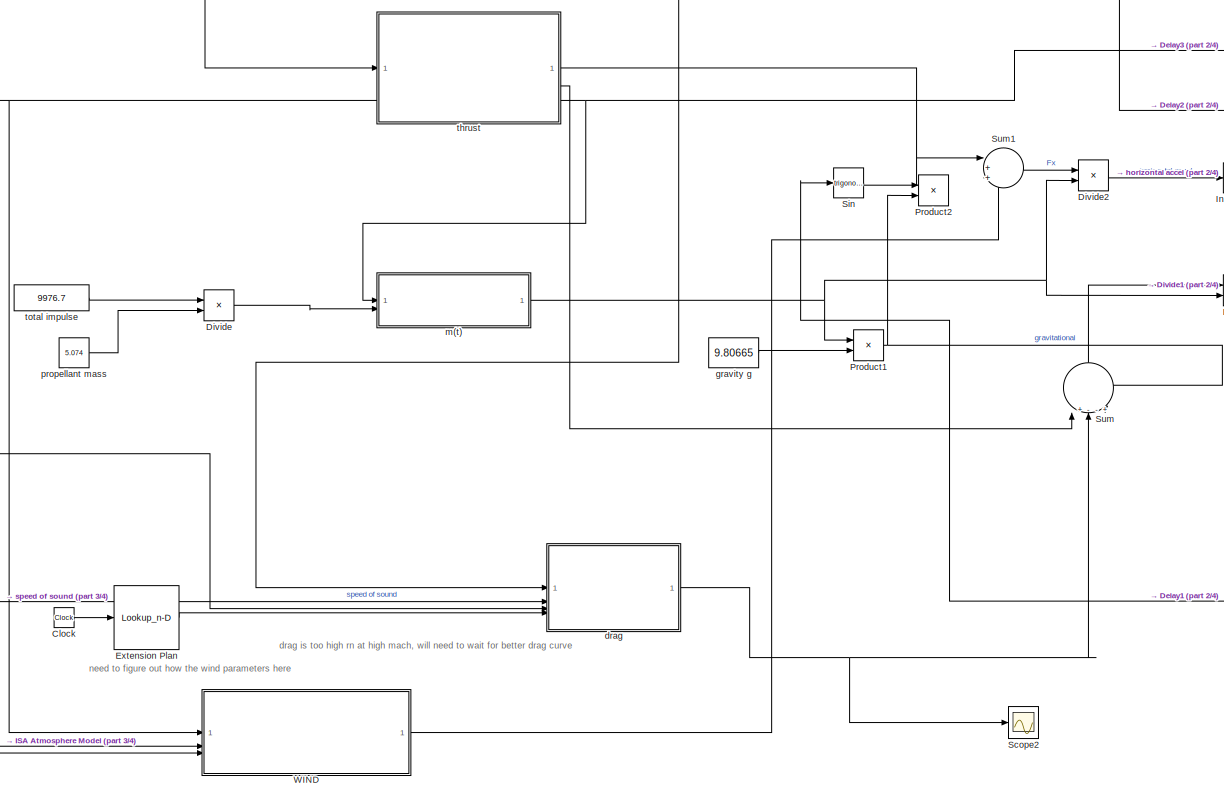
[diagram: root canvas - part 1/4, left side, full height]
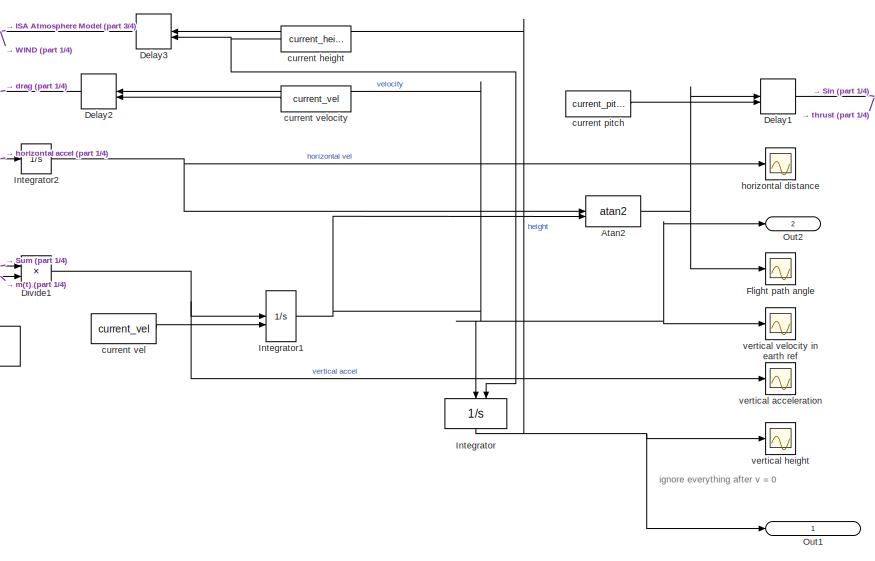
[diagram: root canvas - part 2/4, middle left region]
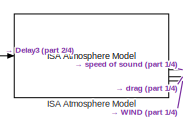
[diagram: root canvas - part 3/4, middle left region]
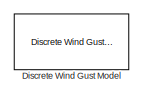
[diagram: root canvas - part 4/4, middle right region]
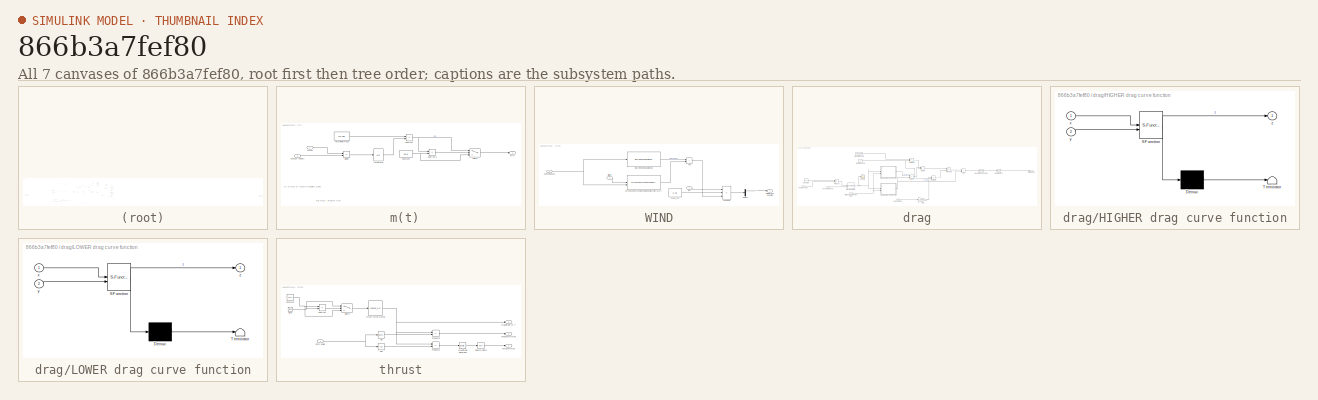
[diagram: thumbnail index - all 7 canvases of the model, root first then tree order]
MODEL slx_866b3a7fef80
KIND model
CONFIG AbsTol = auto
CONFIG EnableMultiTasking = off
CONFIG FixedStep = auto
CONFIG MaxStep = auto
CONFIG MinStep = auto
CONFIG RelTol = 1e-3
CONFIG SampleTimeConstraint = Unconstrained
CONFIG SolverName = ode15s
CONFIG StartTime = 0
CONFIG StopTime = 200.0
BLOCK [SubSystem]  m(t)
BLOCK [Constant]  m(t)/Constant
  Value = 16.8
BLOCK [Product]  m(t)/Divide
  Inputs = */
BLOCK [Integrator]  m(t)/Integrator
BLOCK [Sum]  m(t)/Subtract
  IconShape = rectangular
  Inputs = +-
BLOCK [Sum]  m(t)/Subtract1
  IconShape = rectangular
  Inputs = +-
BLOCK [Switch]  m(t)/Switch
  Criteria = u2 > Threshold
  InputSameDT = off
  SaturateOnIntegerOverflow = off
BLOCK [Constant]  m(t)/Total initial mass
  Value = 22.145
BLOCK [Inport]  m(t)/exhaust velocity
  Port = 2
BLOCK [Outport]  m(t)/m(t)
BLOCK [Inport]  m(t)/thrust
BLOCK [Trigonometry] Atan2
  Operator = atan2
BLOCK [Clock] Clock
BLOCK [Delay] Delay1
  DelayLength = 1
  InitialConditionSource = Input port
  InputPortMap = u0,p4
BLOCK [Delay] Delay2
  DelayLength = 1
  InitialConditionSource = Input port
  InputPortMap = u0,p4
BLOCK [Delay] Delay3
  DelayLength = 1
  InitialConditionSource = Input port
  InputPortMap = u0,p4
BLOCK [Reference] Discrete Wind Gust Model  REF=aerolibwind2/Discrete Wind Gust Model
  SourceBlock = aerolibwind2/Discrete Wind Gust Model
  SourceType = Discrete Wind Gust Model
BLOCK [Product] Divide
  Inputs = */
BLOCK [Product] Divide1
  Inputs = */
BLOCK [Product] Divide2
  Inputs = */
BLOCK [Lookup_n-D] Extension Plan
  BreakpointsForDimension1 = [0 4.99 5 5.01 5.011 6]
  InputPortMap = u0
  InternalRulePriority = Speed
  NumberOfTableDimensions = 1
  RndMeth = Simplest
  Table = [0 0 extension_length 0.99*extension_length 0 0]
BLOCK [Scope] Flight path angle
  Floating = off
  NumInputPorts = 1
  ScopeSpecificationString = Simulink.scopes.TimeScopeBlockCfg('CurrentConfiguration', extmgr.ConfigurationSet(extmgr.Configuration('Core','General UI',true),extmgr.Configuration('Core','Source UI',true),extmgr.Configuration('Sources','WiredSimulink',true,'DataLoggingVariableName','ScopeData1'),extmgr.Configuration('Visuals','Time Domain',true,'SerializedDisplays',{struct('MinYLimReal','-0.05','MaxYLimReal','1.56955','YLabelR...<+1469ch>
BLOCK [Reference] ISA Atmosphere Model  REF=aerolibatmos2/ISA Atmosphere Model
  SourceBlock = aerolibatmos2/ISA Atmosphere Model
  SourceType = International Standard Atmosphere Model
BLOCK [Integrator] Integrator
  InitialConditionSource = external
  NameLocation = left
BLOCK [Integrator] Integrator1
  InitialConditionSource = external
BLOCK [Integrator] Integrator2
BLOCK [Outport] Out1
  IconDisplay = Signal name
  SignalName = height
BLOCK [Outport] Out2
  IconDisplay = Signal name
  Port = 2
  SignalName = velocity
BLOCK [Product] Product1
BLOCK [Product] Product2
BLOCK [Scope] Scope2
  Floating = off
  NumInputPorts = 1
  ScopeSpecificationString = Simulink.scopes.TimeScopeBlockCfg('CurrentConfiguration', extmgr.ConfigurationSet(extmgr.Configuration('Core','General UI',true),extmgr.Configuration('Core','Source UI',true),extmgr.Configuration('Sources','WiredSimulink',true,'DataLoggingVariableName','ScopeData6'),extmgr.Configuration('Visuals','Time Domain',true,'SerializedDisplays',{struct('MinYLimReal','-34.15702','MaxYLimReal','308.70219','Y...<+1399ch>
BLOCK [Trigonometry] Sin
BLOCK [Sum] Sum
  Inputs = |+--+-
  NameLocation = right
BLOCK [Sum] Sum1
  Inputs = |+++
BLOCK [SubSystem] WIND
BLOCK [Sum] WIND/Add
  IconShape = rectangular
BLOCK [Inport] WIND/Altitude
BLOCK [Demux] WIND/Demux
  Outputs = 3
BLOCK [Reference] WIND/Discrete Wind Gust Model1  REF=aerolibwind2/Discrete Wind Gust Model
  SourceBlock = aerolibwind2/Discrete Wind Gust Model
  SourceType = Discrete Wind Gust Model
BLOCK [Reference] WIND/Dryden Wind Turbulence Model (Discrete (+q +r))  REF=aerolibwind2/Dryden Wind Turbulence Model 
(Continuous (+q -r))
  LibrarySourceBlock = aerolibwind2/Dryden Wind Turbulence Model \n(Discrete (+q +r))
  SourceBlock = aerolibwind2/Dryden Wind Turbulence Model \n(Continuous (+q -r))
  SourceType = Wind Turbulence Model
BLOCK [Inport] WIND/In2
  Port = 2
BLOCK [Product] WIND/Product2
  Inputs = 3
BLOCK [Constant] WIND/area_ref
  Value = 0.15
BLOCK [Inport] WIND/speed of sound
  Port = 3
BLOCK [Outport] WIND/wind force u direction
BLOCK [Constant] current height
  Value = current_height
BLOCK [Constant] current pitch
  Value = current_pitch
BLOCK [Constant] current vel
  Value = current_vel
BLOCK [Constant] current velocity
  Value = current_vel
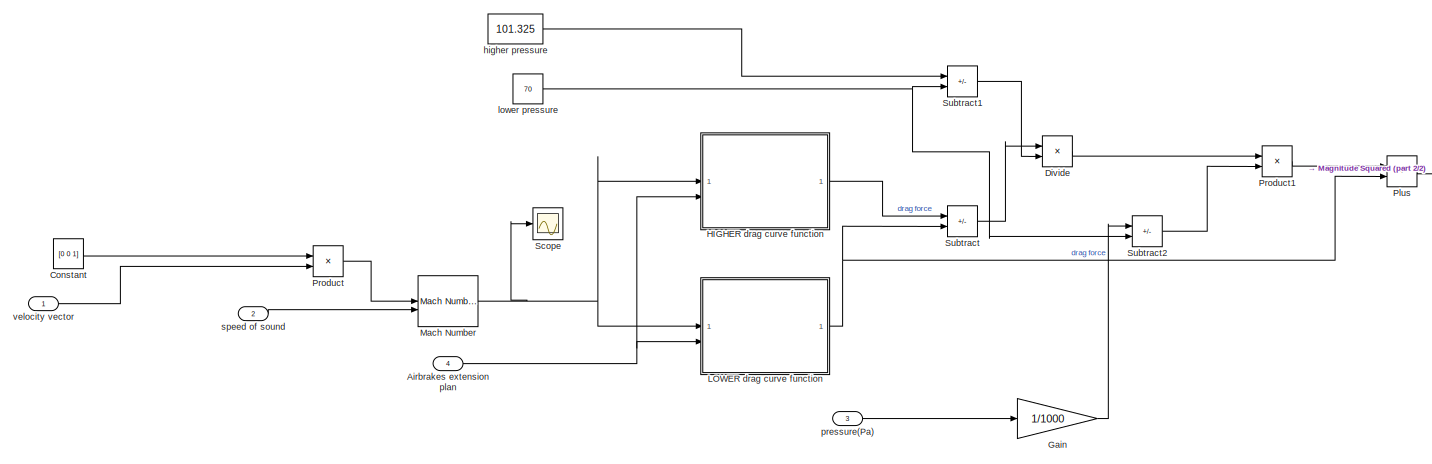
[diagram: drag - part 1/2, center side, full height]
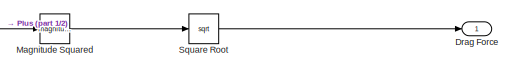
[diagram: drag - part 2/2, middle right region]
BLOCK [SubSystem] drag
BLOCK [Inport] drag/Airbrakes extension plan
  Port = 4
BLOCK [Constant] drag/Constant
  Value = [0 0 1]
  VectorParams1D = off
BLOCK [Product] drag/Divide
  Inputs = */
BLOCK [Outport] drag/Drag Force
BLOCK [Gain] drag/Gain
  Gain = 1/1000
BLOCK [SubSystem] drag/HIGHER drag curve function
  ErrorFcn = Stateflow.Translate.translate
  LibrarySourceBlock = simulink/User-Defined\nFunctions/MATLAB Function
  PermitHierarchicalResolution = ExplicitOnly
  SFBlockType = MATLAB Function
  TreatAsAtomicUnit = on
BLOCK [Demux] drag/HIGHER drag curve function/ Demux 
  Outputs = 1
BLOCK [S-Function] drag/HIGHER drag curve function/ SFunction 
  EnableBusSupport = on
  FunctionName = sf_sfun
  PortCounts = [2 2]
  SFcnIsStateOwnerBlock = off
  SFunctionDeploymentMode = off
  Tag = Stateflow S-Function 1
BLOCK [Terminator] drag/HIGHER drag curve function/ Terminator 
BLOCK [Inport] drag/HIGHER drag curve function/x
BLOCK [Inport] drag/HIGHER drag curve function/y
  Port = 2
BLOCK [Outport] drag/HIGHER drag curve function/z
BLOCK [SubSystem] drag/LOWER drag curve function
  ErrorFcn = Stateflow.Translate.translate
  LibrarySourceBlock = simulink/User-Defined\nFunctions/MATLAB Function
  PermitHierarchicalResolution = ExplicitOnly
  SFBlockType = MATLAB Function
  TreatAsAtomicUnit = on
BLOCK [Demux] drag/LOWER drag curve function/ Demux 
  Outputs = 1
BLOCK [S-Function] drag/LOWER drag curve function/ SFunction 
  EnableBusSupport = on
  FunctionName = sf_sfun
  PortCounts = [2 2]
  SFcnIsStateOwnerBlock = off
  SFunctionDeploymentMode = off
  Tag = Stateflow S-Function 2
BLOCK [Terminator] drag/LOWER drag curve function/ Terminator 
BLOCK [Inport] drag/LOWER drag curve function/x
BLOCK [Inport] drag/LOWER drag curve function/y
  Port = 2
BLOCK [Outport] drag/LOWER drag curve function/z
BLOCK [Reference] drag/Mach Number  REF=aerolibasang/Mach Number
  SourceBlock = aerolibasang/Mach Number
  SourceType = Mach Number
BLOCK [Math] drag/Magnitude Squared
  Operator = magnitude^2
BLOCK [Sum] drag/Plus
  IconShape = rectangular
BLOCK [Product] drag/Product
BLOCK [Product] drag/Product1
BLOCK [Scope] drag/Scope
  Floating = off
  NumInputPorts = 1
  ScopeSpecificationString = Simulink.scopes.TimeScopeBlockCfg('CurrentConfiguration', extmgr.ConfigurationSet(extmgr.Configuration('Core','General UI',true),extmgr.Configuration('Core','Source UI',true),extmgr.Configuration('Sources','WiredSimulink',true,'DataLoggingVariableName','ScopeData1'),extmgr.Configuration('Visuals','Time Domain',true,'SerializedDisplays',{struct('MinYLimReal','-0.09498','MaxYLimReal','0.86923','YLab...<+1370ch>
BLOCK [Sqrt] drag/Square Root
BLOCK [Sum] drag/Subtract
  IconShape = rectangular
  Inputs = +-
BLOCK [Sum] drag/Subtract1
  IconShape = rectangular
  Inputs = +-
BLOCK [Sum] drag/Subtract2
  IconShape = rectangular
  Inputs = +-
BLOCK [Constant] drag/higher pressure
  Value = 101.325
BLOCK [Constant] drag/lower pressure
  Value = 70
BLOCK [Inport] drag/pressure(Pa)
  Port = 3
BLOCK [Inport] drag/speed of sound
  Port = 2
BLOCK [Inport] drag/velocity vector
BLOCK [Constant] gravity g
  Value = 9.80665
BLOCK [Scope] horizontal distance
  Floating = off
  NumInputPorts = 1
  ScopeSpecificationString = Simulink.scopes.TimeScopeBlockCfg('CurrentConfiguration', extmgr.ConfigurationSet(extmgr.Configuration('Core','General UI',true),extmgr.Configuration('Core','Source UI',true),extmgr.Configuration('Sources','WiredSimulink',true,'DataLoggingVariableName','ScopeData1'),extmgr.Configuration('Visuals','Time Domain',true,'SerializedDisplays',{struct('MinYLimReal','-0.02803','MaxYLimReal','0.25228','YLab...<+1373ch>
BLOCK [Constant] propellant mass
  Value = 5.074
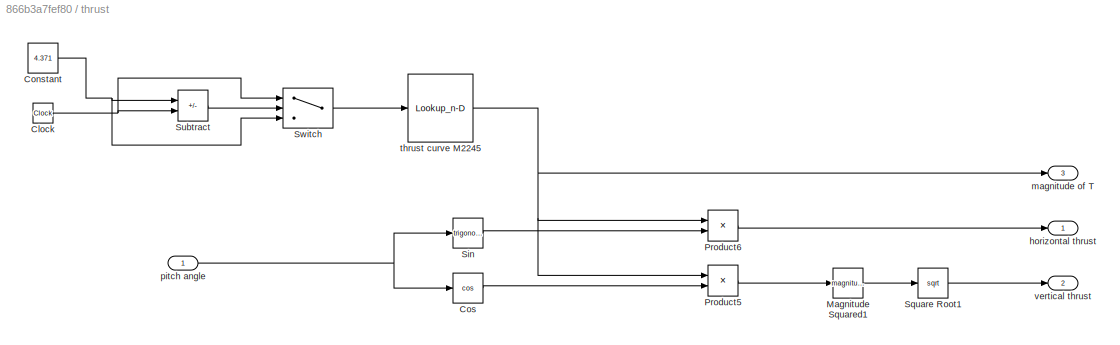
BLOCK [SubSystem] thrust
BLOCK [Clock] thrust/Clock
BLOCK [Constant] thrust/Constant
  Value = 4.371
BLOCK [Trigonometry] thrust/Cos
  Operator = cos
BLOCK [Math] thrust/Magnitude Squared1
  Operator = magnitude^2
BLOCK [Product] thrust/Product5
BLOCK [Product] thrust/Product6
BLOCK [Trigonometry] thrust/Sin
BLOCK [Sqrt] thrust/Square Root1
BLOCK [Sum] thrust/Subtract
  IconShape = rectangular
  Inputs = +-
BLOCK [Switch] thrust/Switch
  InputSameDT = off
  SaturateOnIntegerOverflow = off
BLOCK [Outport] thrust/horizontal thrust
BLOCK [Outport] thrust/magnitude of T
  Port = 3
BLOCK [Inport] thrust/pitch angle
BLOCK [Lookup_n-D] thrust/thrust curve M2245
  BreakpointsForDimension1 = [0.043\n0.136\n1.393\n2.168\n2.708\n2.837\n3.152\n3.397\n3.878\n4.371]
  BreakpointsForDimension2 = [1:3]
  InputPortMap = u0
  InternalRulePriority = Speed
  NumberOfTableDimensions = 1
  RndMeth = Simplest
  Table = [3045.655\n2629.813\n3003.3\n3007.151\n2972.497\n2883.938\n1955.996\n1409.241\n562.156\n0]
BLOCK [Outport] thrust/vertical thrust
  Port = 2
BLOCK [Constant] total impulse
  Value = 9976.7
BLOCK [Scope] vertical acceleration
  Floating = off
  NumInputPorts = 1
  ScopeSpecificationString = Simulink.scopes.TimeScopeBlockCfg('CurrentConfiguration', extmgr.ConfigurationSet(extmgr.Configuration('Core','General UI',true),extmgr.Configuration('Core','Source UI',true),extmgr.Configuration('Sources','WiredSimulink',true,'DataLoggingVariableName','ScopeData3'),extmgr.Configuration('Visuals','Time Domain',true,'SerializedDisplays',{struct('MinYLimReal','-63.67412','MaxYLimReal','230.39021','Y...<+1457ch>
BLOCK [Scope] vertical height
  Floating = off
  NumInputPorts = 1
  ScopeSpecificationString = Simulink.scopes.TimeScopeBlockCfg('CurrentConfiguration', extmgr.ConfigurationSet(extmgr.Configuration('Core','General UI',true),extmgr.Configuration('Core','Source UI',true),extmgr.Configuration('Sources','WiredSimulink',true,'DataLoggingVariableName','ScopeData3'),extmgr.Configuration('Visuals','Time Domain',true,'SerializedDisplays',{struct('MinYLimReal','681.24429','MaxYLimReal','3868.80141','...<+1435ch>
BLOCK [Scope] vertical velocity in earth ref
  Floating = off
  NumInputPorts = 1
  ScopeSpecificationString = Simulink.scopes.TimeScopeBlockCfg('CurrentConfiguration', extmgr.ConfigurationSet(extmgr.Configuration('Core','General UI',true),extmgr.Configuration('Core','Source UI',true),extmgr.Configuration('Sources','WiredSimulink',true,'DataLoggingVariableName','ScopeData1'),extmgr.Configuration('Visuals','Time Domain',true,'SerializedDisplays',{struct('MinYLimReal','-85.28204','MaxYLimReal','624.86194','Y...<+1453ch>
ANNOTATION (root): ignore everything after v = 0
ANNOTATION (root): drag is too high rn at high mach, will need to wait for better drag curve
ANNOTATION (root): need to figure out how the wind parameters here
ANNOTATION  m(t): mt is mass of rocket's propellant grains
ANNOTATION  m(t): orig mass + integral(-T/ve)
NET  m(t)/Constant:1 ->  m(t)/Subtract1:2,  m(t)/Switch:3
LINE  m(t)/Divide:1 ->  m(t)/Integrator:1
LINE  m(t)/Integrator:1 ->  m(t)/Subtract:2
LINE  m(t)/Subtract1:1 ->  m(t)/Switch:2
NET  m(t)/Subtract:1 ->  m(t)/Subtract1:1,  m(t)/Switch:1
LINE  m(t)/Switch:1 ->  m(t)/m(t):1
LINE  m(t)/Total initial mass:1 ->  m(t)/Subtract:1
LINE  m(t)/exhaust velocity:1 ->  m(t)/Divide:2
LINE  m(t)/thrust:1 ->  m(t)/Divide:1
NET  m(t):1 -> Divide1:2, Divide2:2, Product1:1
NET Atan2:1 -> Delay1:1, Flight path angle:1
LINE Clock:1 -> Extension Plan:1
NET Delay1:1 -> Sin:1, thrust:1
LINE Delay2:1 -> drag:1
NET Delay3:1 ->  m(t):1, ISA Atmosphere Model:1, WIND:1
NET Divide1:1 -> Integrator1:1, vertical acceleration:1
LINE Divide2:1 -> Integrator2:1
LINE Divide:1 ->  m(t):2
LINE Extension Plan:1 -> drag:4
NET ISA Atmosphere Model:2 -> WIND:3, drag:2
LINE ISA Atmosphere Model:3 -> drag:3
LINE ISA Atmosphere Model:4 -> WIND:2
NET Integrator1:1 -> Atan2:2, Delay2:1, Integrator:1, Out2:1, vertical velocity in earth ref:1
NET Integrator2:1 -> Atan2:1, horizontal distance:1
NET Integrator:1 -> Delay3:1, Out1:1, vertical height:1
NET Product1:1 -> Product2:2, Sum:5
LINE Sin:1 -> Product2:1
LINE Sum1:1 -> Divide2:1
LINE Sum:1 -> Divide1:1
LINE WIND/Add:1 -> WIND/Product2:3
LINE WIND/Altitude:1 -> WIND/Dryden Wind Turbulence Model (Discrete (+q +r)):1
LINE WIND/Demux:1 -> WIND/wind force u direction:1
LINE WIND/Discrete Wind Gust Model1:1 -> WIND/Add:1
LINE WIND/Dryden Wind Turbulence Model (Discrete (+q +r)):1 -> WIND/Add:2
LINE WIND/In2:1 -> WIND/Product2:1
LINE WIND/Product2:1 -> WIND/Demux:1
LINE WIND/area_ref:1 -> WIND/Product2:2
NET WIND/speed of sound:1 -> WIND/Discrete Wind Gust Model1:1, WIND/Dryden Wind Turbulence Model (Discrete (+q +r)):2
LINE WIND:1 -> Sum1:3
NET current height:1 -> Delay3:2, Integrator:2
LINE current pitch:1 -> Delay1:2
LINE current vel:1 -> Integrator1:2
LINE current velocity:1 -> Delay2:2
NET drag/Airbrakes extension plan:1 -> drag/HIGHER drag curve function:2, drag/LOWER drag curve function:2
LINE drag/Constant:1 -> drag/Product:1
LINE drag/Divide:1 -> drag/Product1:1
LINE drag/Gain:1 -> drag/Subtract2:1
LINE drag/HIGHER drag curve function:1 -> drag/Subtract:1
NET drag/LOWER drag curve function:1 -> drag/Plus:2, drag/Subtract:2
NET drag/Mach Number:1 -> drag/HIGHER drag curve function:1, drag/LOWER drag curve function:1, drag/Scope:1
LINE drag/Magnitude Squared:1 -> drag/Square Root:1
LINE drag/Plus:1 -> drag/Magnitude Squared:1
LINE drag/Product1:1 -> drag/Plus:1
LINE drag/Product:1 -> drag/Mach Number:1
LINE drag/Square Root:1 -> drag/Drag Force:1
LINE drag/Subtract1:1 -> drag/Divide:2
LINE drag/Subtract2:1 -> drag/Product1:2
LINE drag/Subtract:1 -> drag/Divide:1
LINE drag/higher pressure:1 -> drag/Subtract1:1
NET drag/lower pressure:1 -> drag/Subtract1:2, drag/Subtract2:2
LINE drag/pressure(Pa):1 -> drag/Gain:1
LINE drag/speed of sound:1 -> drag/Mach Number:2
LINE drag/velocity vector:1 -> drag/Product:2
NET drag:1 -> Scope2:1, Sum:3
LINE gravity g:1 -> Product1:2
LINE propellant mass:1 -> Divide:2
NET thrust/Clock:1 -> thrust/Subtract:2, thrust/Switch:1
NET thrust/Constant:1 -> thrust/Subtract:1, thrust/Switch:3
LINE thrust/Cos:1 -> thrust/Product5:2
LINE thrust/Magnitude Squared1:1 -> thrust/Square Root1:1
LINE thrust/Product5:1 -> thrust/Magnitude Squared1:1
LINE thrust/Product6:1 -> thrust/horizontal thrust:1
LINE thrust/Sin:1 -> thrust/Product6:2
LINE thrust/Square Root1:1 -> thrust/vertical thrust:1
LINE thrust/Subtract:1 -> thrust/Switch:2
LINE thrust/Switch:1 -> thrust/thrust curve M2245:1
NET thrust/pitch angle:1 -> thrust/Cos:1, thrust/Sin:1
NET thrust/thrust curve M2245:1 -> thrust/Product5:1, thrust/Product6:1, thrust/magnitude of T:1
LINE thrust:1 -> Sum1:1
LINE thrust:2 -> Sum:1
LINE total impulse:1 -> Divide:1
note: NET lines group one-source signal fan-out (src -> all destinations, sorted); 1:1 wires keep LINE
CHART drag/LOWER drag curve function states=1 transitions=1
  STATE_LABEL 'eML_blk_kernel()'
  STATE_LABEL 'SCRIPT:\nfunction z = fcn(x, y)\n%x is mach number, y is extension in m\nz = 68.2243 -668.2799*x -1.1397e+03*y + 1.3993e+03*x^2 + 1.3374e+04*x*y + 8.1616e+04 *y^2 -349.7704*x^3 -3.3397e+04*x^2*y + 6.5648e+05*x*y^2 -7.5125e+06*y^3'
CHART drag/HIGHER drag curve function states=1 transitions=1
  STATE_LABEL 'eML_blk_kernel()'
  STATE_LABEL 'SCRIPT:\nfunction z = fcn(x, y)\n%x is mach number, y is extension in m\nz = 23.6982 -123.4344*x - 2.5545e+03*y + 402.1042*x^2 + 9.1165e+03*x*y + 4.4646e+04*y^2'
CHART  states=0 transitions=0
CHART  states=0 transitions=0
